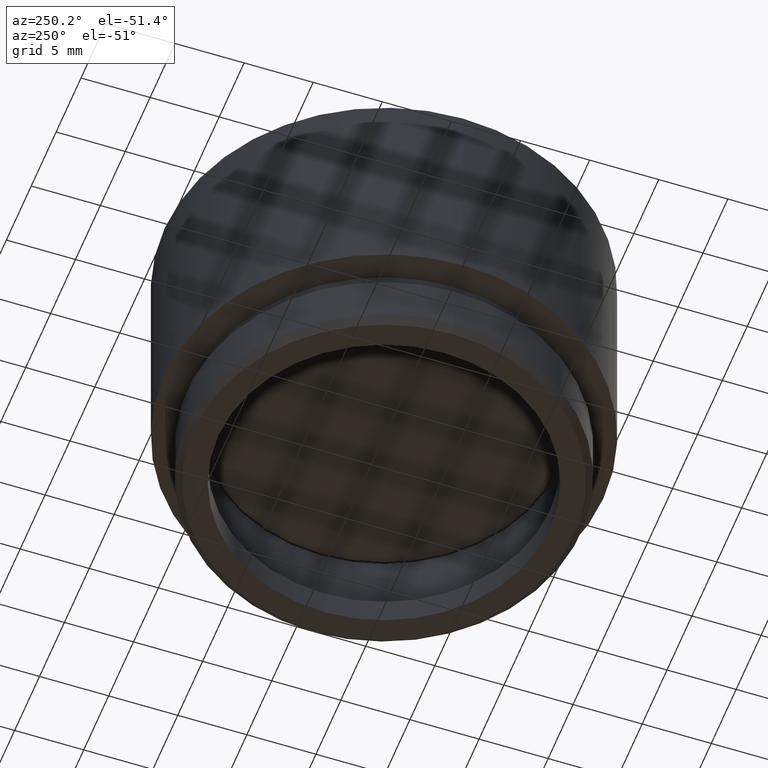
[diagram: clean part render]
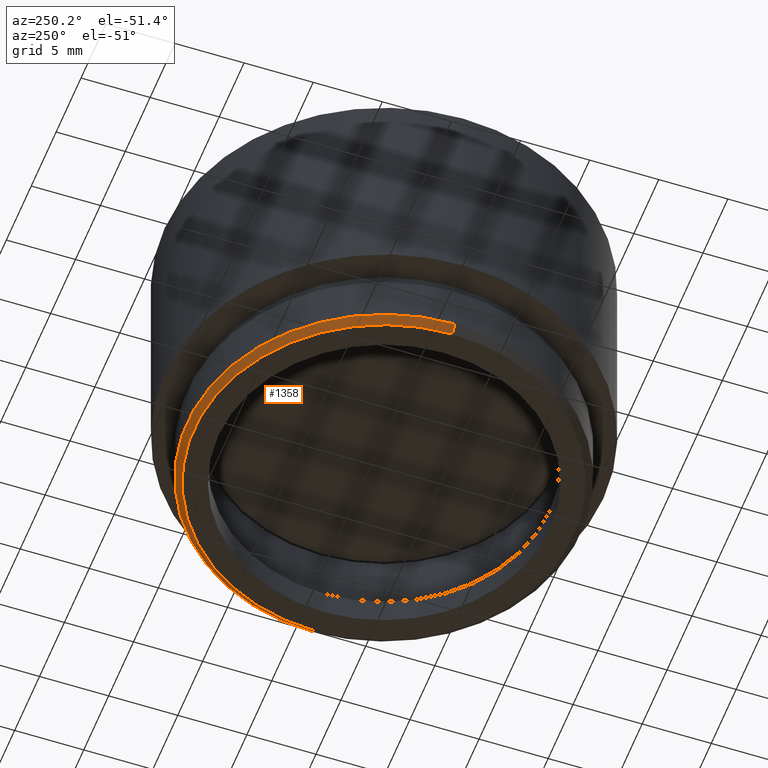
[diagram: same view with one face highlighted and labeled with its STEP entity id]
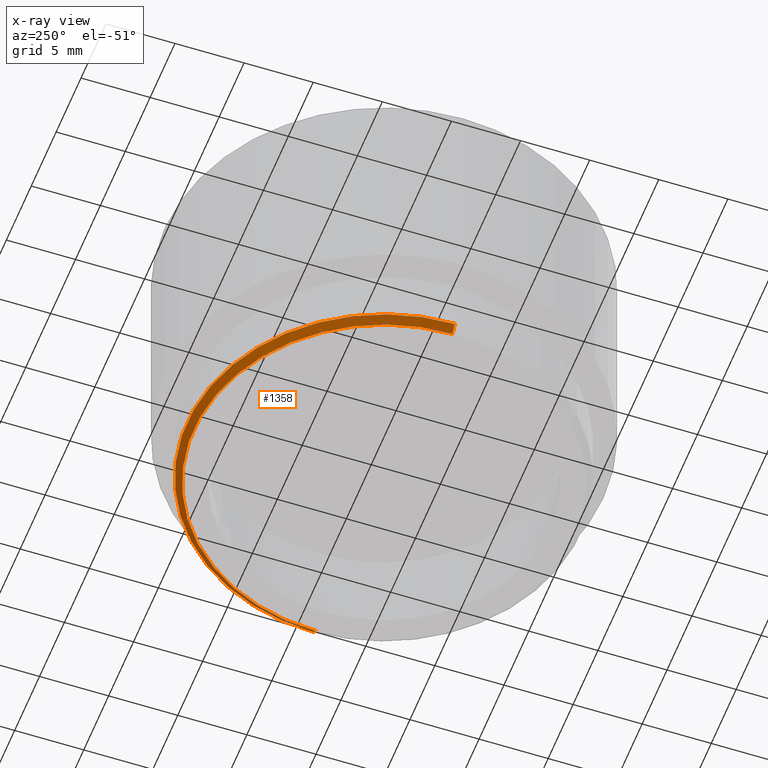
[diagram: x-ray of the same camera — body ghosted, the highlighted face saturated]
A machine part, auxiliary view. The second image highlights one B-rep face of the part: STEP entity #1358.
The next image is the same camera in x-ray: the body ghosted, the highlighted face saturated — about 0% of this face is hidden behind the body in this view.
In plain terms, the highlighted conical surface has half-angle 45 deg.
Its self-contained STEP definition (entity closure, byte-faithful):
#96 = LINE ( 'NONE', #628, #1485 ) ;
#97 = CIRCLE ( 'NONE', #1353, 14.25000000000000000 ) ;
#109 = CARTESIAN_POINT ( 'NONE',  ( 13.74999999999999112, 0.000000000000000000, 0.000000000000000000 ) ) ;
#147 = LINE ( 'NONE', #295, #595 ) ;
#263 = CARTESIAN_POINT ( 'NONE',  ( 0.000000000000000000, 0.000000000000000000, 0.000000000000000000 ) ) ;
#290 = CONICAL_SURFACE ( 'NONE', #1269, 13.74999999999999112, 0.7853981633974533860 ) ;
#292 = CARTESIAN_POINT ( 'NONE',  ( 0.000000000000000000, 0.000000000000000000, 0.000000000000000000 ) ) ;
#295 = CARTESIAN_POINT ( 'NONE',  ( 13.74999999999999112, 0.000000000000000000, 0.000000000000000000 ) ) ;
#350 = CARTESIAN_POINT ( 'NONE',  ( 14.25000000000000000, 1.745121688784978228E-15, 0.5000000000000038858 ) ) ;
#387 = EDGE_LOOP ( 'NONE', ( #822, #1611, #993, #1482 ) ) ;
#413 = DIRECTION ( 'NONE',  ( 0.7071067811865512365, 0.000000000000000000, 0.7071067811865439090 ) ) ;
#419 = FACE_OUTER_BOUND ( 'NONE', #387, .T. ) ;
#539 = VERTEX_POINT ( 'NONE', #651 ) ;
#555 = DIRECTION ( 'NONE',  ( 1.000000000000000000, 0.000000000000000000, 0.000000000000000000 ) ) ;
#595 = VECTOR ( 'NONE', #413, 1000.000000000000000 ) ;
#628 = CARTESIAN_POINT ( 'NONE',  ( -13.74999999999999112, 1.683889348827609668E-15, 0.000000000000000000 ) ) ;
#651 = CARTESIAN_POINT ( 'NONE',  ( -13.74999999999999112, 1.714505518806294046E-15, 0.000000000000000000 ) ) ;
#682 = DIRECTION ( 'NONE',  ( 1.000000000000000000, 0.000000000000000000, 0.000000000000000000 ) ) ;
#770 = VERTEX_POINT ( 'NONE', #109 ) ;
#822 = ORIENTED_EDGE ( 'NONE', *, *, #1348, .F. ) ;
#892 = DIRECTION ( 'NONE',  ( -0.7071067811865512365, 8.659560562354978464E-17, 0.7071067811865439090 ) ) ;
#993 = ORIENTED_EDGE ( 'NONE', *, *, #1391, .F. ) ;
#1010 = VERTEX_POINT ( 'NONE', #1478 ) ;
#1075 = DIRECTION ( 'NONE',  ( 1.000000000000000000, 0.000000000000000000, 0.000000000000000000 ) ) ;
#1211 = AXIS2_PLACEMENT_3D ( 'NONE', #263, #1222, #555 ) ;
#1222 = DIRECTION ( 'NONE',  ( -0.000000000000000000, -0.000000000000000000, -1.000000000000000000 ) ) ;
#1269 = AXIS2_PLACEMENT_3D ( 'NONE', #292, #1365, #682 ) ;
#1282 = EDGE_CURVE ( 'NONE', #539, #1010, #96, .T. ) ;
#1348 = EDGE_CURVE ( 'NONE', #539, #770, #1623, .T. ) ;
#1353 = AXIS2_PLACEMENT_3D ( 'NONE', #1463, #1357, #1075 ) ;
#1357 = DIRECTION ( 'NONE',  ( 0.000000000000000000, 0.000000000000000000, 1.000000000000000000 ) ) ;
#1358 = ADVANCED_FACE ( 'NONE', ( #419 ), #290, .T. ) ;
#1365 = DIRECTION ( 'NONE',  ( 0.000000000000000000, 0.000000000000000000, 1.000000000000000000 ) ) ;
#1391 = EDGE_CURVE ( 'NONE', #1650, #1010, #97, .T. ) ;
#1463 = CARTESIAN_POINT ( 'NONE',  ( 0.000000000000000000, 0.000000000000000000, 0.5000000000000038858 ) ) ;
#1478 = CARTESIAN_POINT ( 'NONE',  ( -14.25000000000000000, 0.000000000000000000, 0.5000000000000038858 ) ) ;
#1482 = ORIENTED_EDGE ( 'NONE', *, *, #1532, .F. ) ;
#1485 = VECTOR ( 'NONE', #892, 1000.000000000000000 ) ;
#1532 = EDGE_CURVE ( 'NONE', #770, #1650, #147, .T. ) ;
#1611 = ORIENTED_EDGE ( 'NONE', *, *, #1282, .T. ) ;
#1623 = CIRCLE ( 'NONE', #1211, 13.74999999999999112 ) ;
#1650 = VERTEX_POINT ( 'NONE', #350 ) ;